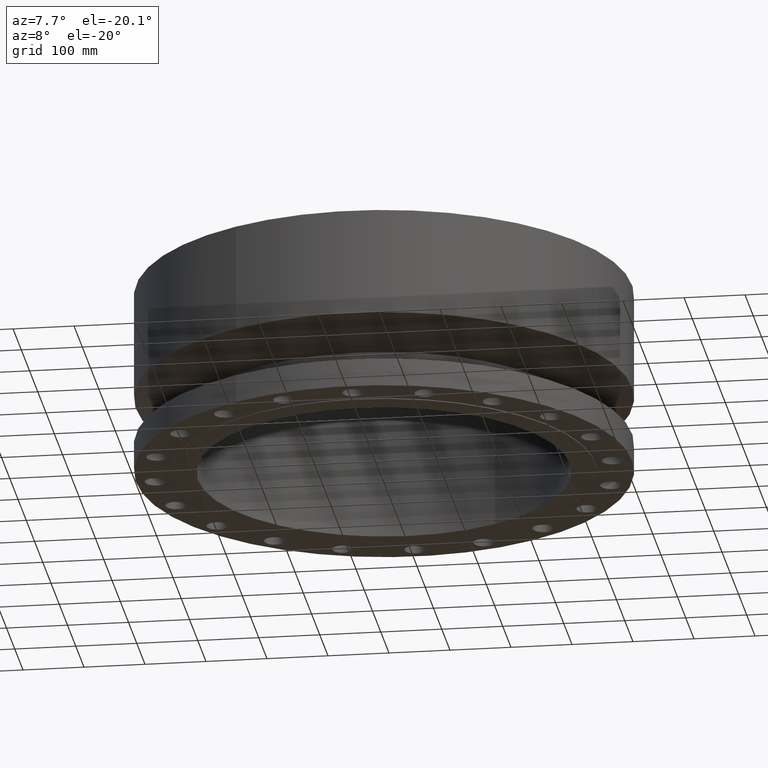
[diagram: clean part render]
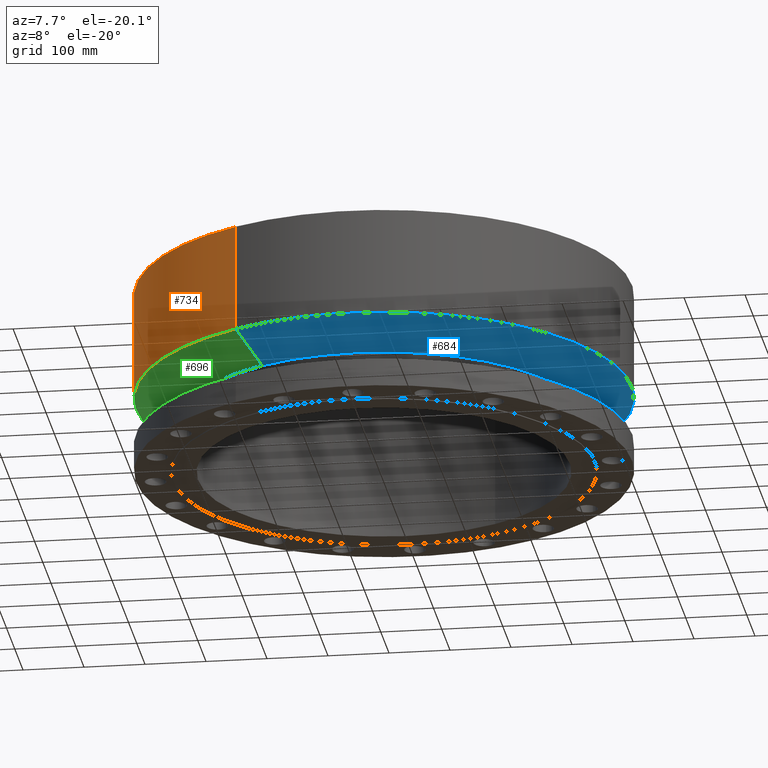
[diagram: same view with three faces highlighted in distinct colors, each labeled with its STEP entity id]
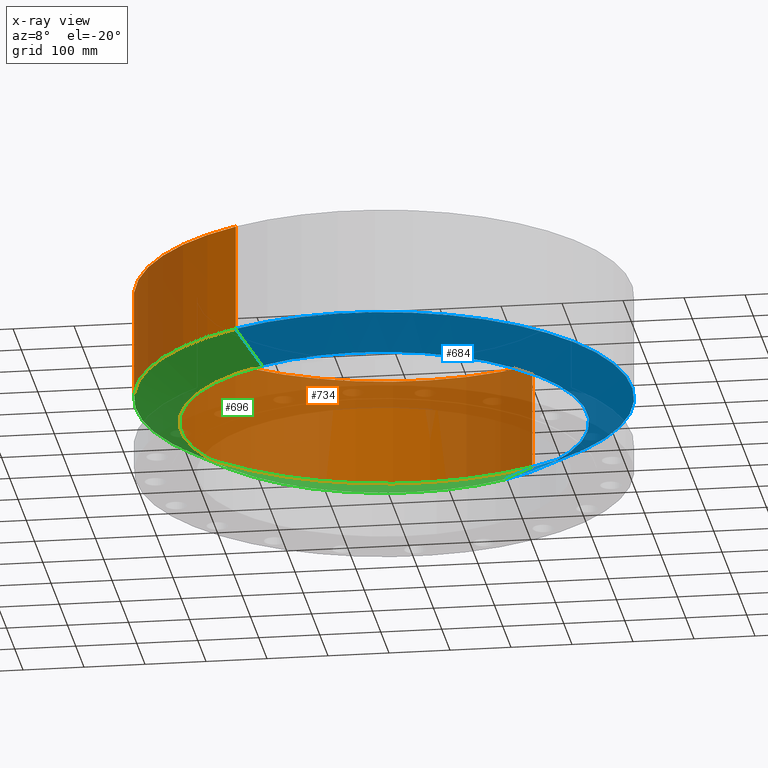
[diagram: x-ray of the same camera — body ghosted, the three highlighted faces saturated]
A machine part, auxiliary view with three faces highlighted in distinct colors.
The next image is the same camera in x-ray (body ghosted, the three faces saturated) — at least one of them is partly hidden behind the body in this view.
Their STEP definitions:

[orange] entity #734 — the highlighted cylindrical surface (partial cylindrical patch) has radius 406.4 mm, axis along (0, 0, -1).
#471=AXIS2_PLACEMENT_3D('Cylinder Axis2P3D',#468,#469,#470) ;
#687=AXIS2_PLACEMENT_3D('Circle Axis2P3D',#685,#686,$) ;
#725=AXIS2_PLACEMENT_3D('Circle Axis2P3D',#723,#724,$) ;
#468=CARTESIAN_POINT('Axis2P3D Location',(0.,0.,5.93750000002)) ;
#663=CARTESIAN_POINT('Vertex',(7.6708086177,14.0413209903,4.97738202394)) ;
#670=CARTESIAN_POINT('Vertex',(-7.6708086177,-14.0413209903,4.97738202394)) ;
#685=CARTESIAN_POINT('Axis2P3D Location',(0.,0.,4.97738202394)) ;
#697=CARTESIAN_POINT('Line Origine',(7.6708086177,14.0413209903,8.45744101199)) ;
#701=CARTESIAN_POINT('Vertex',(7.6708086177,14.0413209903,11.9375)) ;
#708=CARTESIAN_POINT('Vertex',(-7.6708086177,-14.0413209903,11.9375)) ;
#711=CARTESIAN_POINT('Line Origine',(-7.6708086177,-14.0413209903,8.45744101199)) ;
#723=CARTESIAN_POINT('Axis2P3D Location',(0.,0.,11.9375)) ;
#469=DIRECTION('Axis2P3D Direction',(0.,0.,-0.0393700787402)) ;
#470=DIRECTION('Axis2P3D XDirection',(-0.0188750212049,-0.0345504945626,0.)) ;
#686=DIRECTION('Axis2P3D Direction',(-0.,0.,0.0393700787402)) ;
#698=DIRECTION('Vector Direction',(0.,0.,-0.0393700787402)) ;
#712=DIRECTION('Vector Direction',(0.,0.,-0.0393700787402)) ;
#724=DIRECTION('Axis2P3D Direction',(0.,0.,-0.0393700787402)) ;
#699=VECTOR('Line Direction',#698,0.0393700787402) ;
#713=VECTOR('Line Direction',#712,0.0393700787402) ;
#729=ORIENTED_EDGE('',*,*,#689,.F.) ;
#730=ORIENTED_EDGE('',*,*,#715,.T.) ;
#731=ORIENTED_EDGE('',*,*,#727,.T.) ;
#732=ORIENTED_EDGE('',*,*,#703,.F.) ;
#734=ADVANCED_FACE('PartBody',(#733),#472,.T.) ;
#688=CIRCLE('generated circle',#687,16.0000000001) ;
#726=CIRCLE('generated circle',#725,16.0000000001) ;
#472=CYLINDRICAL_SURFACE('generated cylinder',#471,16.0000000001) ;
#689=EDGE_CURVE('',#671,#664,#688,.F.) ;
#703=EDGE_CURVE('',#664,#702,#700,.F.) ;
#715=EDGE_CURVE('',#671,#709,#714,.F.) ;
#727=EDGE_CURVE('',#709,#702,#726,.T.) ;
#728=EDGE_LOOP('',(#729,#730,#731,#732)) ;
#733=FACE_OUTER_BOUND('',#728,.T.) ;
#700=LINE('Line',#697,#699) ;
#714=LINE('Line',#711,#713) ;
#664=VERTEX_POINT('',#663) ;
#671=VERTEX_POINT('',#670) ;
#702=VERTEX_POINT('',#701) ;
#709=VERTEX_POINT('',#708) ;

[blue] entity #684 — the highlighted conical surface has half-angle 60 deg.
#625=AXIS2_PLACEMENT_3D('Circle Axis2P3D',#623,#624,$) ;
#657=AXIS2_PLACEMENT_3D('Cone Axis2P3D',#654,#655,#656) ;
#668=AXIS2_PLACEMENT_3D('Circle Axis2P3D',#666,#667,$) ;
#620=CARTESIAN_POINT('Vertex',(6.29246019421,11.5182711249,3.31750000001)) ;
#623=CARTESIAN_POINT('Axis2P3D Location',(0.,0.,3.31750000001)) ;
#627=CARTESIAN_POINT('Vertex',(-6.29246019421,-11.5182711249,3.31750000001)) ;
#654=CARTESIAN_POINT('Axis2P3D Location',(0.,0.,3.31750000001)) ;
#659=CARTESIAN_POINT('Line Origine',(6.98163440595,12.7797960576,4.14744101198)) ;
#663=CARTESIAN_POINT('Vertex',(7.6708086177,14.0413209903,4.97738202394)) ;
#666=CARTESIAN_POINT('Axis2P3D Location',(0.,0.,4.97738202394)) ;
#670=CARTESIAN_POINT('Vertex',(-7.6708086177,-14.0413209903,4.97738202394)) ;
#673=CARTESIAN_POINT('Line Origine',(-6.98163440595,-12.7797960576,4.14744101198)) ;
#624=DIRECTION('Axis2P3D Direction',(0.,0.,-0.0393700787402)) ;
#655=DIRECTION('Axis2P3D Direction',(-0.,-0.,0.0393700787402)) ;
#656=DIRECTION('Axis2P3D XDirection',(0.0188750212049,0.0345504945626,0.)) ;
#660=DIRECTION('Vector Direction',(0.0163462478604,0.0299216060045,0.0196850393701)) ;
#667=DIRECTION('Axis2P3D Direction',(-0.,0.,0.0393700787402)) ;
#674=DIRECTION('Vector Direction',(-0.0163462478604,-0.0299216060045,0.0196850393701)) ;
#661=VECTOR('Line Direction',#660,0.0393700787402) ;
#675=VECTOR('Line Direction',#674,0.0393700787402) ;
#679=ORIENTED_EDGE('',*,*,#629,.F.) ;
#680=ORIENTED_EDGE('',*,*,#665,.T.) ;
#681=ORIENTED_EDGE('',*,*,#672,.T.) ;
#682=ORIENTED_EDGE('',*,*,#677,.F.) ;
#684=ADVANCED_FACE('PartBody',(#683),#658,.T.) ;
#626=CIRCLE('generated circle',#625,13.1250000001) ;
#669=CIRCLE('generated circle',#668,16.0000000001) ;
#658=CONICAL_SURFACE('Cone',#657,13.1250000001,1.0471975512) ;
#629=EDGE_CURVE('',#621,#628,#626,.T.) ;
#665=EDGE_CURVE('',#621,#664,#662,.T.) ;
#672=EDGE_CURVE('',#664,#671,#669,.F.) ;
#677=EDGE_CURVE('',#628,#671,#676,.T.) ;
#678=EDGE_LOOP('',(#679,#680,#681,#682)) ;
#683=FACE_OUTER_BOUND('',#678,.T.) ;
#662=LINE('Line',#659,#661) ;
#676=LINE('Line',#673,#675) ;
#621=VERTEX_POINT('',#620) ;
#628=VERTEX_POINT('',#627) ;
#664=VERTEX_POINT('',#663) ;
#671=VERTEX_POINT('',#670) ;

[green] entity #696 — the highlighted conical surface has half-angle 60 deg.
#644=AXIS2_PLACEMENT_3D('Circle Axis2P3D',#642,#643,$) ;
#657=AXIS2_PLACEMENT_3D('Cone Axis2P3D',#654,#655,#656) ;
#687=AXIS2_PLACEMENT_3D('Circle Axis2P3D',#685,#686,$) ;
#620=CARTESIAN_POINT('Vertex',(6.29246019421,11.5182711249,3.31750000001)) ;
#627=CARTESIAN_POINT('Vertex',(-6.29246019421,-11.5182711249,3.31750000001)) ;
#642=CARTESIAN_POINT('Axis2P3D Location',(0.,0.,3.31750000001)) ;
#654=CARTESIAN_POINT('Axis2P3D Location',(0.,0.,3.31750000001)) ;
#659=CARTESIAN_POINT('Line Origine',(6.98163440595,12.7797960576,4.14744101198)) ;
#663=CARTESIAN_POINT('Vertex',(7.6708086177,14.0413209903,4.97738202394)) ;
#670=CARTESIAN_POINT('Vertex',(-7.6708086177,-14.0413209903,4.97738202394)) ;
#673=CARTESIAN_POINT('Line Origine',(-6.98163440595,-12.7797960576,4.14744101198)) ;
#685=CARTESIAN_POINT('Axis2P3D Location',(0.,0.,4.97738202394)) ;
#643=DIRECTION('Axis2P3D Direction',(0.,0.,-0.0393700787402)) ;
#655=DIRECTION('Axis2P3D Direction',(-0.,-0.,0.0393700787402)) ;
#656=DIRECTION('Axis2P3D XDirection',(0.0188750212049,0.0345504945626,0.)) ;
#660=DIRECTION('Vector Direction',(0.0163462478604,0.0299216060045,0.0196850393701)) ;
#674=DIRECTION('Vector Direction',(-0.0163462478604,-0.0299216060045,0.0196850393701)) ;
#686=DIRECTION('Axis2P3D Direction',(-0.,0.,0.0393700787402)) ;
#661=VECTOR('Line Direction',#660,0.0393700787402) ;
#675=VECTOR('Line Direction',#674,0.0393700787402) ;
#691=ORIENTED_EDGE('',*,*,#646,.F.) ;
#692=ORIENTED_EDGE('',*,*,#677,.T.) ;
#693=ORIENTED_EDGE('',*,*,#689,.T.) ;
#694=ORIENTED_EDGE('',*,*,#665,.F.) ;
#696=ADVANCED_FACE('PartBody',(#695),#658,.T.) ;
#645=CIRCLE('generated circle',#644,13.1250000001) ;
#688=CIRCLE('generated circle',#687,16.0000000001) ;
#658=CONICAL_SURFACE('Cone',#657,13.1250000001,1.0471975512) ;
#646=EDGE_CURVE('',#628,#621,#645,.T.) ;
#665=EDGE_CURVE('',#621,#664,#662,.T.) ;
#677=EDGE_CURVE('',#628,#671,#676,.T.) ;
#689=EDGE_CURVE('',#671,#664,#688,.F.) ;
#690=EDGE_LOOP('',(#691,#692,#693,#694)) ;
#695=FACE_OUTER_BOUND('',#690,.T.) ;
#662=LINE('Line',#659,#661) ;
#676=LINE('Line',#673,#675) ;
#621=VERTEX_POINT('',#620) ;
#628=VERTEX_POINT('',#627) ;
#664=VERTEX_POINT('',#663) ;
#671=VERTEX_POINT('',#670) ;